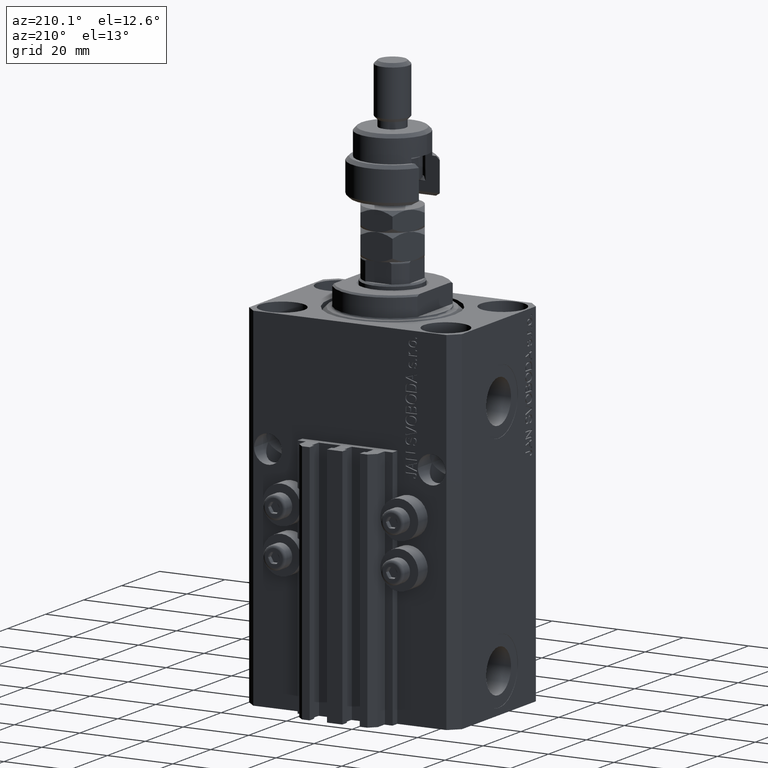
[diagram: clean part render]
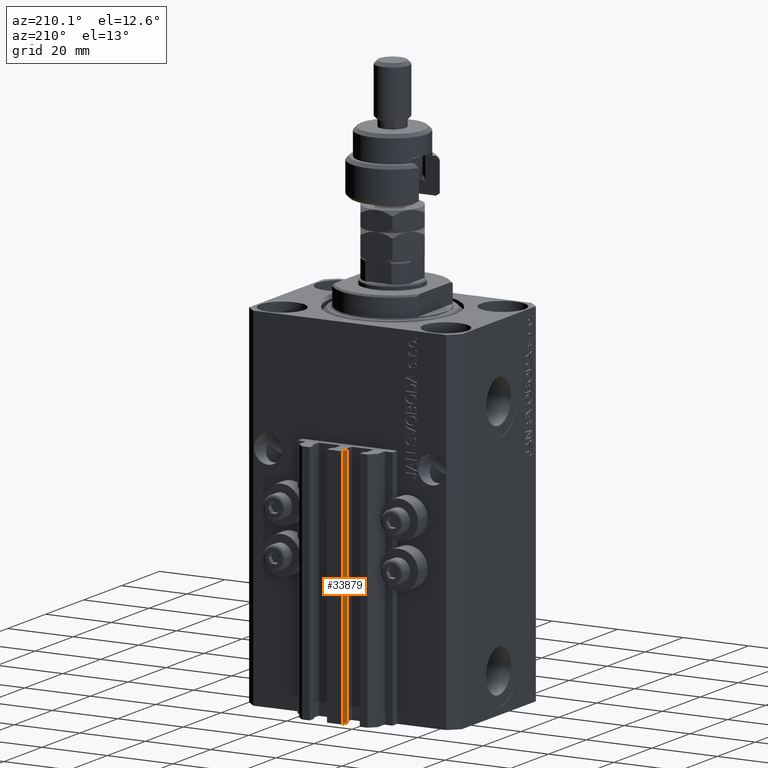
[diagram: same view with one face highlighted and labeled with its STEP entity id]
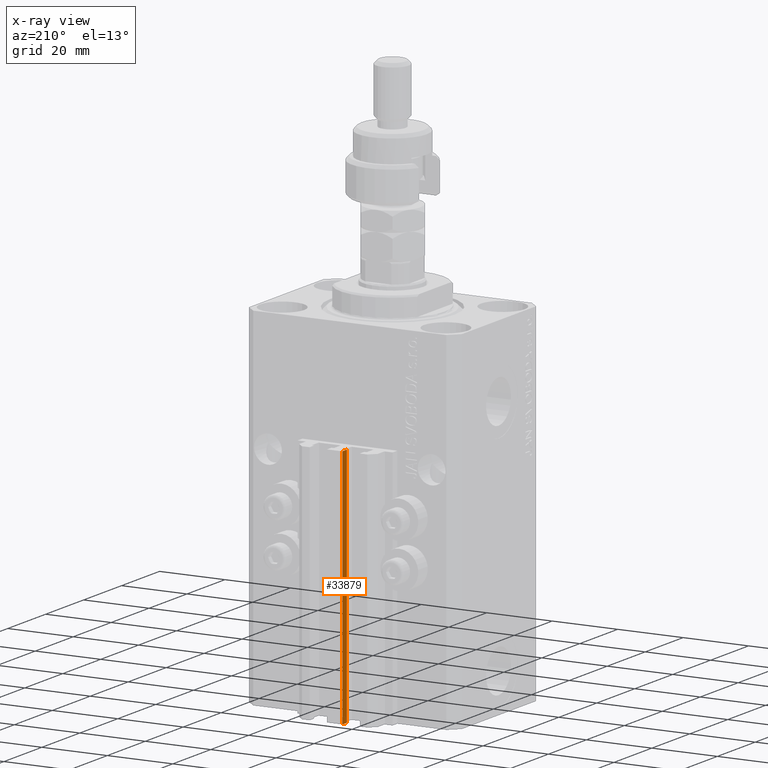
[diagram: x-ray of the same camera — body ghosted, the highlighted face saturated]
A machine part, auxiliary view. The second image highlights one B-rep face of the part: STEP entity #33879.
The next image is the same camera in x-ray: the body ghosted, the highlighted face saturated — about 0% of this face is hidden behind the body in this view.
In plain terms, the highlighted planar face has unit normal (-1, 0, 0).
Its self-contained STEP definition (entity closure, byte-faithful):
#1497 = EDGE_CURVE ( 'NONE', #21901, #20700, #26051, .T. ) ;
#1510 = DIRECTION ( 'NONE',  ( 0.000000000000000000, -1.000000000000000000, 0.000000000000000000 ) ) ;
#3381 = DIRECTION ( 'NONE',  ( 0.000000000000000000, -1.000000000000000000, 0.000000000000000000 ) ) ;
#3996 = CARTESIAN_POINT ( 'NONE',  ( -2.350000000000003197, 30.49999999999949907, -107.0000000000000000 ) ) ;
#4538 = ORIENTED_EDGE ( 'NONE', *, *, #42330, .T. ) ;
#5302 = CARTESIAN_POINT ( 'NONE',  ( -2.350000000000003197, 30.49999999999949907, -107.0000000000000000 ) ) ;
#6810 = DIRECTION ( 'NONE',  ( 0.000000000000000000, 0.000000000000000000, 1.000000000000000000 ) ) ;
#7200 = CARTESIAN_POINT ( 'NONE',  ( -2.350000000000003197, 28.09999999999950049, -107.0000000000000000 ) ) ;
#7547 = PLANE ( 'NONE',  #13638 ) ;
#11400 = VERTEX_POINT ( 'NONE', #41825 ) ;
#11779 = CARTESIAN_POINT ( 'NONE',  ( -2.350000000000003197, 28.09999999999950049, -107.0000000000000000 ) ) ;
#12612 = ORIENTED_EDGE ( 'NONE', *, *, #38425, .T. ) ;
#12718 = VECTOR ( 'NONE', #41473, 1000.000000000000000 ) ;
#13638 = AXIS2_PLACEMENT_3D ( 'NONE', #30035, #26986, #6810 ) ;
#19219 = VERTEX_POINT ( 'NONE', #7200 ) ;
#20233 = VECTOR ( 'NONE', #34265, 1000.000000000000000 ) ;
#20700 = VERTEX_POINT ( 'NONE', #49039 ) ;
#21308 = EDGE_CURVE ( 'NONE', #20700, #11400, #45555, .T. ) ;
#21356 = ORIENTED_EDGE ( 'NONE', *, *, #1497, .F. ) ;
#21901 = VERTEX_POINT ( 'NONE', #49734 ) ;
#24560 = VECTOR ( 'NONE', #3381, 1000.000000000000000 ) ;
#24964 = EDGE_LOOP ( 'NONE', ( #26338, #21356, #4538, #12612 ) ) ;
#25484 = LINE ( 'NONE', #5302, #38596 ) ;
#26051 = LINE ( 'NONE', #3996, #12718 ) ;
#26338 = ORIENTED_EDGE ( 'NONE', *, *, #21308, .F. ) ;
#26986 = DIRECTION ( 'NONE',  ( -1.000000000000000000, 0.000000000000000000, 0.000000000000000000 ) ) ;
#30035 = CARTESIAN_POINT ( 'NONE',  ( -2.350000000000003197, 30.49999999999949907, -107.0000000000000000 ) ) ;
#33879 = ADVANCED_FACE ( 'NONE', ( #42160 ), #7547, .T. ) ;
#34265 = DIRECTION ( 'NONE',  ( 0.000000000000000000, 0.000000000000000000, 1.000000000000000000 ) ) ;
#37989 = CARTESIAN_POINT ( 'NONE',  ( -2.350000000000003197, 30.49999999999949907, -33.00000000000000000 ) ) ;
#38425 = EDGE_CURVE ( 'NONE', #19219, #11400, #49448, .T. ) ;
#38596 = VECTOR ( 'NONE', #1510, 1000.000000000000000 ) ;
#41473 = DIRECTION ( 'NONE',  ( 0.000000000000000000, 0.000000000000000000, 1.000000000000000000 ) ) ;
#41825 = CARTESIAN_POINT ( 'NONE',  ( -2.350000000000003197, 28.09999999999950049, -33.00000000000000000 ) ) ;
#42160 = FACE_OUTER_BOUND ( 'NONE', #24964, .T. ) ;
#42330 = EDGE_CURVE ( 'NONE', #21901, #19219, #25484, .T. ) ;
#45555 = LINE ( 'NONE', #37989, #24560 ) ;
#49039 = CARTESIAN_POINT ( 'NONE',  ( -2.350000000000003197, 30.49999999999949907, -33.00000000000000000 ) ) ;
#49448 = LINE ( 'NONE', #11779, #20233 ) ;
#49734 = CARTESIAN_POINT ( 'NONE',  ( -2.350000000000003197, 30.49999999999949907, -107.0000000000000000 ) ) ;